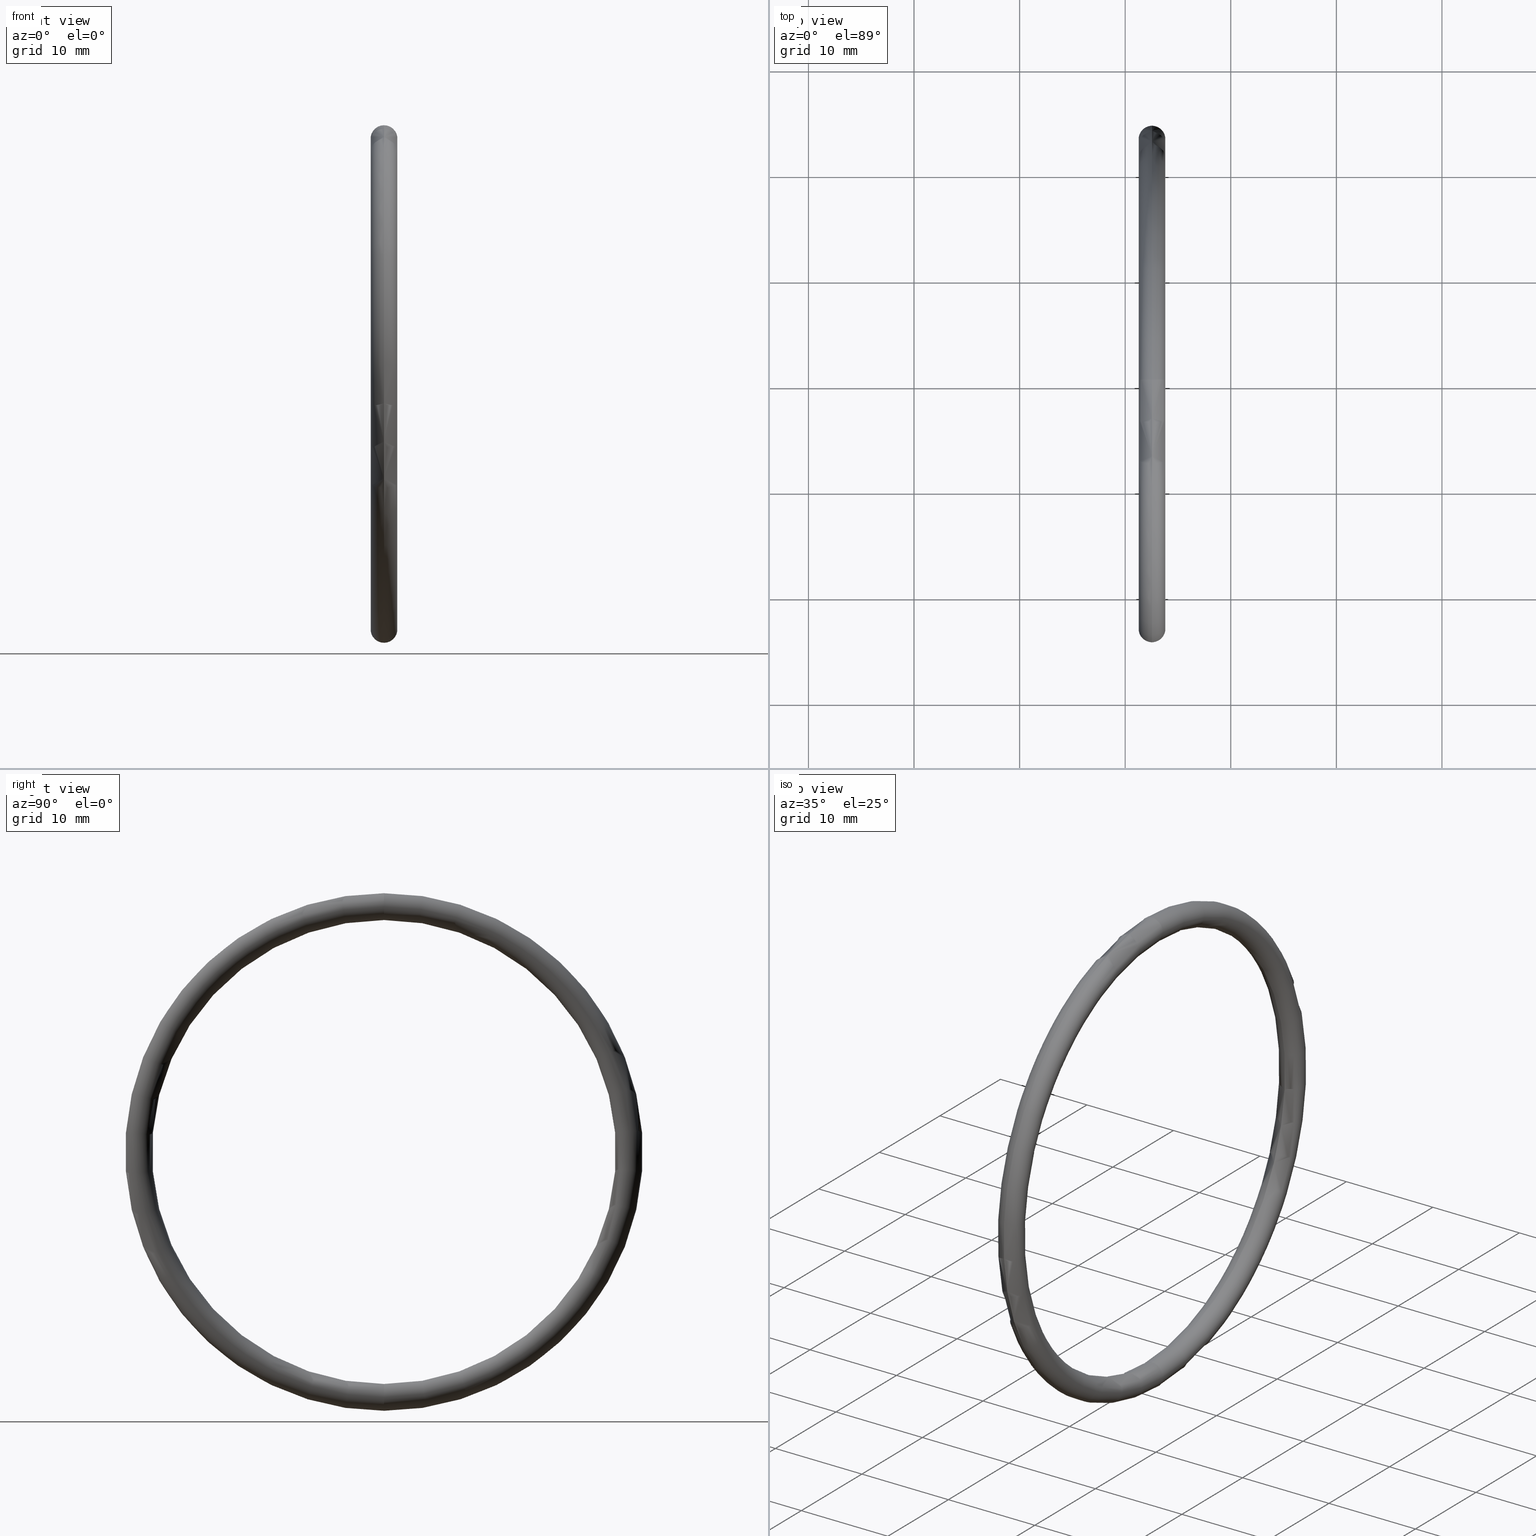
[diagram: canonical four-view strip — front | top / right | iso, engineering-drawing reading convention]
A machine part, canonical four-view strip (front | top / right | iso — engineering-drawing reading convention). The complete STEP part file that produces these views, byte-faithful:
ISO-10303-21;
HEADER;
FILE_DESCRIPTION (( 'STEP AP203' ),
    '1' );
FILE_NAME ('OR-64-SI.STEP',
    '2006-03-03T07:51:45',
    ( 'bay06' ),
    ( '' ),
    'SwSTEP 2.0',
    'SolidWorks 2008',
    '' );
FILE_SCHEMA (( 'CONFIG_CONTROL_DESIGN' ));
ENDSEC;

DATA;
#1 = ORIENTED_EDGE ( 'NONE', *, *, #20, .T. ) ;
#2 = EDGE_CURVE ( 'NONE', #12, #14, #69, .T. ) ;
#3 = EDGE_LOOP ( 'NONE', ( #26, #24, #22, #51 ) ) ;
#4 = ADVANCED_FACE ( 'NONE', ( #71 ), #75, .T. ) ;
#5 = EDGE_LOOP ( 'NONE', ( #13, #7, #18, #21 ) ) ;
#6 = ORIENTED_EDGE ( 'NONE', *, *, #2, .F. ) ;
#7 = ORIENTED_EDGE ( 'NONE', *, *, #10, .T. ) ;
#8 = EDGE_CURVE ( 'NONE', #14, #12, #68, .T. ) ;
#9 = VERTEX_POINT ( 'NONE', #92 ) ;
#10 = EDGE_CURVE ( 'NONE', #14, #9, #95, .T. ) ;
#11 = MANIFOLD_SOLID_BREP ( 'NONE', #47 ) ;
#12 = VERTEX_POINT ( 'NONE', #96 ) ;
#13 = ORIENTED_EDGE ( 'NONE', *, *, #8, .F. ) ;
#14 = VERTEX_POINT ( 'NONE', #90 ) ;
#15 = VERTEX_POINT ( 'NONE', #89 ) ;
#16 = ADVANCED_FACE ( 'NONE', ( #88 ), #67, .T. ) ;
#17 = ADVANCED_FACE ( 'NONE', ( #59 ), #62, .T. ) ;
#18 = ORIENTED_EDGE ( 'NONE', *, *, #19, .T. ) ;
#19 = EDGE_CURVE ( 'NONE', #9, #15, #83, .T. ) ;
#20 = EDGE_CURVE ( 'NONE', #12, #15, #100, .T. ) ;
#21 = ORIENTED_EDGE ( 'NONE', *, *, #20, .F. ) ;
#22 = ORIENTED_EDGE ( 'NONE', *, *, #8, .T. ) ;
#23 = EDGE_CURVE ( 'NONE', #9, #14, #105, .T. ) ;
#24 = ORIENTED_EDGE ( 'NONE', *, *, #23, .T. ) ;
#25 = CALENDAR_DATE ( 2006, 3, 3 ) ;
#26 = ORIENTED_EDGE ( 'NONE', *, *, #19, .F. ) ;
#27 = DATE_AND_TIME ( #25, #144 ) ;
#28 = PERSON_AND_ORGANIZATION ( #129, #128 ) ;
#29 = DATE_TIME_ROLE ( 'creation_date' ) ;
#30 = PRODUCT_DEFINITION_FORMATION_WITH_SPECIFIED_SOURCE ( 'ANY', '', #130, .NOT_KNOWN. ) ;
#31 = CC_DESIGN_DATE_AND_TIME_ASSIGNMENT ( #27, #29, ( #160 ) ) ;
#32 = APPROVAL_ROLE ( '' ) ;
#33 = APPROVAL_PERSON_ORGANIZATION ( #28, #36, #32 ) ;
#34 = COORDINATED_UNIVERSAL_TIME_OFFSET ( 5, 30, .AHEAD. ) ;
#35 = LOCAL_TIME ( 13, 21, 45.00000000000000000, #34 ) ;
#36 = APPROVAL ( #38, 'UNSPECIFIED' ) ;
#37 = CALENDAR_DATE ( 2006, 3, 3 ) ;
#38 = APPROVAL_STATUS ( 'not_yet_approved' ) ;
#39 = EDGE_CURVE ( 'NONE', #15, #12, #104, .T. ) ;
#40 = ORIENTED_EDGE ( 'NONE', *, *, #48, .F. ) ;
#41 = ADVANCED_FACE ( 'NONE', ( #124 ), #118, .T. ) ;
#42 = ORIENTED_EDGE ( 'NONE', *, *, #39, .T. ) ;
#43 = ORIENTED_EDGE ( 'NONE', *, *, #10, .F. ) ;
#44 = EDGE_LOOP ( 'NONE', ( #43, #6, #1, #46 ) ) ;
#45 = ORIENTED_EDGE ( 'NONE', *, *, #2, .T. ) ;
#46 = ORIENTED_EDGE ( 'NONE', *, *, #48, .T. ) ;
#47 = CLOSED_SHELL ( 'NONE', ( #16, #17, #41, #4 ) ) ;
#48 = EDGE_CURVE ( 'NONE', #15, #9, #110, .T. ) ;
#49 = ORIENTED_EDGE ( 'NONE', *, *, #23, .F. ) ;
#50 = EDGE_LOOP ( 'NONE', ( #49, #40, #42, #45 ) ) ;
#51 = ORIENTED_EDGE ( 'NONE', *, *, #39, .F. ) ;
#52 = CC_DESIGN_APPROVAL ( #36, ( #30 ) ) ;
#53 = DATE_AND_TIME ( #37, #35 ) ;
#54 = APPROVAL_DATE_TIME ( #53, #36 ) ;
#55 = DIRECTION ( 'NONE',  ( -0.0000000000000000000, 1.000000000000000000, 1.224646799147353200E-016 ) ) ;
#56 = CARTESIAN_POINT ( 'NONE',  ( 0.1000000000000001200, 1.120551821219828000E-016, -0.9149999999999999200 ) ) ;
#57 = AXIS2_PLACEMENT_3D ( 'NONE', #56, #55, #93 ) ;
#58 = AXIS2_PLACEMENT_3D ( 'NONE', #70, #91, #72 ) ;
#59 = FACE_OUTER_BOUND ( 'NONE', #3, .T. ) ;
#60 = DIRECTION ( 'NONE',  ( 0.0000000000000000000, 0.0000000000000000000, 1.000000000000000000 ) ) ;
#61 = DIRECTION ( 'NONE',  ( -1.000000000000000000, -0.0000000000000000000, -0.0000000000000000000 ) ) ;
#62 = TOROIDAL_SURFACE ( 'NONE', #64, 0.9149999999999999200, 0.05000000000000000300 ) ;
#63 = CARTESIAN_POINT ( 'NONE',  ( 0.1000000000000001200, 0.0000000000000000000, 0.0000000000000000000 ) ) ;
#64 = AXIS2_PLACEMENT_3D ( 'NONE', #63, #86, #85 ) ;
#65 = DIRECTION ( 'NONE',  ( -1.000000000000000000, -0.0000000000000000000, -0.0000000000000000000 ) ) ;
#66 = AXIS2_PLACEMENT_3D ( 'NONE', #87, #61, #60 ) ;
#67 = TOROIDAL_SURFACE ( 'NONE', #66, 0.9149999999999999200, 0.05000000000000000300 ) ;
#68 = CIRCLE ( 'NONE', #57, 0.05000000000000001000 ) ;
#69 = CIRCLE ( 'NONE', #58, 0.05000000000000001000 ) ;
#70 = CARTESIAN_POINT ( 'NONE',  ( 0.1000000000000001200, 1.120551821219828000E-016, -0.9149999999999999200 ) ) ;
#71 = FACE_OUTER_BOUND ( 'NONE', #44, .T. ) ;
#72 = DIRECTION ( 'NONE',  ( 0.0000000000000000000, -1.224646799147351700E-016, 1.000000000000000000 ) ) ;
#73 = DIRECTION ( 'NONE',  ( 0.0000000000000000000, 0.0000000000000000000, 1.000000000000000000 ) ) ;
#74 = AXIS2_PLACEMENT_3D ( 'NONE', #76, #65, #73 ) ;
#75 = TOROIDAL_SURFACE ( 'NONE', #74, 0.9149999999999999200, 0.05000000000000000300 ) ;
#76 = CARTESIAN_POINT ( 'NONE',  ( 0.1000000000000001200, 0.0000000000000000000, 0.0000000000000000000 ) ) ;
#77 = DIRECTION ( 'NONE',  ( 0.0000000000000000000, 0.0000000000000000000, 1.000000000000000000 ) ) ;
#78 = DIRECTION ( 'NONE',  ( -1.000000000000000000, -0.0000000000000000000, -0.0000000000000000000 ) ) ;
#79 = CARTESIAN_POINT ( 'NONE',  ( 0.1000000000000001200, 0.0000000000000000000, 0.0000000000000000000 ) ) ;
#80 = DIRECTION ( 'NONE',  ( 0.0000000000000000000, -1.000000000000000000, 0.0000000000000000000 ) ) ;
#81 = CARTESIAN_POINT ( 'NONE',  ( 0.1000000000000001200, 0.0000000000000000000, 0.9149999999999999200 ) ) ;
#82 = AXIS2_PLACEMENT_3D ( 'NONE', #81, #80, #102 ) ;
#83 = CIRCLE ( 'NONE', #82, 0.05000000000000001000 ) ;
#84 = CARTESIAN_POINT ( 'NONE',  ( 0.1000000000000001200, 0.0000000000000000000, 0.0000000000000000000 ) ) ;
#85 = DIRECTION ( 'NONE',  ( 0.0000000000000000000, 0.0000000000000000000, 1.000000000000000000 ) ) ;
#86 = DIRECTION ( 'NONE',  ( -1.000000000000000000, -0.0000000000000000000, -0.0000000000000000000 ) ) ;
#87 = CARTESIAN_POINT ( 'NONE',  ( 0.1000000000000001200, 0.0000000000000000000, 0.0000000000000000000 ) ) ;
#88 = FACE_OUTER_BOUND ( 'NONE', #5, .T. ) ;
#89 = CARTESIAN_POINT ( 'NONE',  ( 0.1000000000000001200, 0.0000000000000000000, 0.8649999999999998800 ) ) ;
#90 = CARTESIAN_POINT ( 'NONE',  ( 0.1000000000000001200, 1.181784161177195800E-016, -0.9649999999999999700 ) ) ;
#91 = DIRECTION ( 'NONE',  ( -0.0000000000000000000, 1.000000000000000000, 1.224646799147353200E-016 ) ) ;
#92 = CARTESIAN_POINT ( 'NONE',  ( 0.1000000000000001200, 0.0000000000000000000, 0.9649999999999999700 ) ) ;
#93 = DIRECTION ( 'NONE',  ( 0.0000000000000000000, -1.224646799147351700E-016, 1.000000000000000000 ) ) ;
#94 = AXIS2_PLACEMENT_3D ( 'NONE', #79, #78, #77 ) ;
#95 = CIRCLE ( 'NONE', #94, 0.9649999999999999700 ) ;
#96 = CARTESIAN_POINT ( 'NONE',  ( 0.1000000000000001200, 1.059319481262460500E-016, -0.8649999999999998800 ) ) ;
#97 = DIRECTION ( 'NONE',  ( 0.0000000000000000000, 0.0000000000000000000, 1.000000000000000000 ) ) ;
#98 = DIRECTION ( 'NONE',  ( -1.000000000000000000, -0.0000000000000000000, -0.0000000000000000000 ) ) ;
#99 = AXIS2_PLACEMENT_3D ( 'NONE', #84, #98, #97 ) ;
#100 = CIRCLE ( 'NONE', #99, 0.8649999999999998800 ) ;
#101 = PERSON_AND_ORGANIZATION ( #129, #128 ) ;
#102 = DIRECTION ( 'NONE',  ( 0.0000000000000000000, 0.0000000000000000000, -1.000000000000000000 ) ) ;
#103 = PERSON_AND_ORGANIZATION_ROLE ( 'creator' ) ;
#104 = CIRCLE ( 'NONE', #137, 0.8649999999999998800 ) ;
#105 = CIRCLE ( 'NONE', #114, 0.9649999999999999700 ) ;
#106 = DIRECTION ( 'NONE',  ( 0.0000000000000000000, 0.0000000000000000000, 1.000000000000000000 ) ) ;
#107 = DIRECTION ( 'NONE',  ( 0.0000000000000000000, 0.0000000000000000000, -1.000000000000000000 ) ) ;
#108 = DIRECTION ( 'NONE',  ( 0.0000000000000000000, -1.000000000000000000, 0.0000000000000000000 ) ) ;
#109 = AXIS2_PLACEMENT_3D ( 'NONE', #141, #108, #107 ) ;
#110 = CIRCLE ( 'NONE', #109, 0.05000000000000001000 ) ;
#111 = CARTESIAN_POINT ( 'NONE',  ( 0.1000000000000001200, 0.0000000000000000000, 0.0000000000000000000 ) ) ;
#112 = AXIS2_PLACEMENT_3D ( 'NONE', #111, #166, #143 ) ;
#113 = APPLICATION_CONTEXT ( 'configuration controlled 3d designs of mechanical parts and assemblies' ) ;
#114 = AXIS2_PLACEMENT_3D ( 'NONE', #133, #165, #106 ) ;
#115 =( CONVERSION_BASED_UNIT ( 'INCH', #116 ) LENGTH_UNIT ( ) NAMED_UNIT ( #120 ) );
#116 = LENGTH_MEASURE_WITH_UNIT ( LENGTH_MEASURE( 0.02539999999999999900 ), #121 );
#117 = CARTESIAN_POINT ( 'NONE',  ( 0.1000000000000001200, 0.0000000000000000000, 0.0000000000000000000 ) ) ;
#118 = TOROIDAL_SURFACE ( 'NONE', #112, 0.9149999999999999200, 0.05000000000000000300 ) ;
#119 = UNCERTAINTY_MEASURE_WITH_UNIT (LENGTH_MEASURE( 1.000000000000000100E-005 ), #115, 'distance_accuracy_value', 'NONE');
#120 = DIMENSIONAL_EXPONENTS ( 1.000000000000000000, 0.0000000000000000000, 0.0000000000000000000, 0.0000000000000000000, 0.0000000000000000000, 0.0000000000000000000, 0.0000000000000000000 ) ;
#121 =( LENGTH_UNIT ( ) NAMED_UNIT ( * ) SI_UNIT ( $, .METRE. ) );
#122 =( NAMED_UNIT ( * ) SI_UNIT ( $, .STERADIAN. ) SOLID_ANGLE_UNIT ( ) );
#123 =( NAMED_UNIT ( * ) PLANE_ANGLE_UNIT ( ) SI_UNIT ( $, .RADIAN. ) );
#124 = FACE_OUTER_BOUND ( 'NONE', #50, .T. ) ;
#125 = DIRECTION ( 'NONE',  ( 0.0000000000000000000, 0.0000000000000000000, 1.000000000000000000 ) ) ;
#126 = PERSON_AND_ORGANIZATION_ROLE ( 'design_owner' ) ;
#127 = PERSON_AND_ORGANIZATION ( #129, #128 ) ;
#128 = ORGANIZATION ( 'UNSPECIFIED', 'UNSPECIFIED', '' ) ;
#129 = PERSON ( 'UNSPECIFIED', 'UNSPECIFIED', 'UNSPECIFIED', ('UNSPECIFIED'), ('UNSPECIFIED'), ('UNSPECIFIED') ) ;
#130 = PRODUCT ( 'OR-64-SI', 'OR-64-SI', '', ( #131 ) ) ;
#131 = MECHANICAL_CONTEXT ( 'NONE', #113, 'mechanical' ) ;
#132 = APPLICATION_PROTOCOL_DEFINITION ( 'international standard', 'config_control_design', 1994, #113 ) ;
#133 = CARTESIAN_POINT ( 'NONE',  ( 0.1000000000000001200, 0.0000000000000000000, 0.0000000000000000000 ) ) ;
#134 = DIRECTION ( 'NONE',  ( 1.000000000000000000, 0.0000000000000000000, 0.0000000000000000000 ) ) ;
#135 = DIRECTION ( 'NONE',  ( 0.0000000000000000000, 0.0000000000000000000, 1.000000000000000000 ) ) ;
#136 = AXIS2_PLACEMENT_3D ( 'NONE', #142, #135, #134 ) ;
#137 = AXIS2_PLACEMENT_3D ( 'NONE', #117, #140, #125 ) ;
#138 = ADVANCED_BREP_SHAPE_REPRESENTATION ( 'OR-64-SI', ( #11, #136 ), #139 ) ;
#139 =( GEOMETRIC_REPRESENTATION_CONTEXT ( 3 ) GLOBAL_UNCERTAINTY_ASSIGNED_CONTEXT ( ( #119 ) ) GLOBAL_UNIT_ASSIGNED_CONTEXT ( ( #115, #123, #122 ) ) REPRESENTATION_CONTEXT ( 'NONE', 'WORKASPACE' ) );
#140 = DIRECTION ( 'NONE',  ( -1.000000000000000000, -0.0000000000000000000, -0.0000000000000000000 ) ) ;
#141 = CARTESIAN_POINT ( 'NONE',  ( 0.1000000000000001200, 0.0000000000000000000, 0.9149999999999999200 ) ) ;
#142 = CARTESIAN_POINT ( 'NONE',  ( 0.0000000000000000000, 0.0000000000000000000, 0.0000000000000000000 ) ) ;
#143 = DIRECTION ( 'NONE',  ( 0.0000000000000000000, 0.0000000000000000000, 1.000000000000000000 ) ) ;
#144 = LOCAL_TIME ( 13, 21, 45.00000000000000000, #145 ) ;
#145 = COORDINATED_UNIVERSAL_TIME_OFFSET ( 5, 30, .AHEAD. ) ;
#146 = CC_DESIGN_PERSON_AND_ORGANIZATION_ASSIGNMENT ( #148, #147, ( #160 ) ) ;
#147 = PERSON_AND_ORGANIZATION_ROLE ( 'creator' ) ;
#148 = PERSON_AND_ORGANIZATION ( #129, #128 ) ;
#149 = CC_DESIGN_APPROVAL ( #157, ( #160 ) ) ;
#150 = APPROVAL_DATE_TIME ( #151, #157 ) ;
#151 = DATE_AND_TIME ( #152, #153 ) ;
#152 = CALENDAR_DATE ( 2006, 3, 3 ) ;
#153 = LOCAL_TIME ( 13, 21, 45.00000000000000000, #154 ) ;
#154 = COORDINATED_UNIVERSAL_TIME_OFFSET ( 5, 30, .AHEAD. ) ;
#155 = APPROVAL_PERSON_ORGANIZATION ( #159, #157, #156 ) ;
#156 = APPROVAL_ROLE ( '' ) ;
#157 = APPROVAL ( #158, 'UNSPECIFIED' ) ;
#158 = APPROVAL_STATUS ( 'not_yet_approved' ) ;
#159 = PERSON_AND_ORGANIZATION ( #129, #128 ) ;
#160 = PRODUCT_DEFINITION ( 'UNKNOWN', '', #30, #161 ) ;
#161 = DESIGN_CONTEXT ( 'detailed design', #163, 'design' ) ;
#162 = APPLICATION_PROTOCOL_DEFINITION ( 'international standard', 'config_control_design', 1994, #163 ) ;
#163 = APPLICATION_CONTEXT ( 'configuration controlled 3d designs of mechanical parts and assemblies' ) ;
#164 = CC_DESIGN_PERSON_AND_ORGANIZATION_ASSIGNMENT ( #127, #126, ( #130 ) ) ;
#165 = DIRECTION ( 'NONE',  ( -1.000000000000000000, -0.0000000000000000000, -0.0000000000000000000 ) ) ;
#166 = DIRECTION ( 'NONE',  ( -1.000000000000000000, -0.0000000000000000000, -0.0000000000000000000 ) ) ;
#167 = SECURITY_CLASSIFICATION_LEVEL ( 'unclassified' ) ;
#168 = DATE_AND_TIME ( #189, #192 ) ;
#169 = PERSON_AND_ORGANIZATION ( #129, #128 ) ;
#170 = CC_DESIGN_PERSON_AND_ORGANIZATION_ASSIGNMENT ( #169, #195, ( #179 ) ) ;
#171 = CALENDAR_DATE ( 2006, 3, 3 ) ;
#172 = LOCAL_TIME ( 13, 21, 45.00000000000000000, #173 ) ;
#173 = COORDINATED_UNIVERSAL_TIME_OFFSET ( 5, 30, .AHEAD. ) ;
#174 = PERSON_AND_ORGANIZATION_ROLE ( 'design_supplier' ) ;
#175 = CC_DESIGN_SECURITY_CLASSIFICATION ( #179, ( #30 ) ) ;
#176 = CC_DESIGN_APPROVAL ( #186, ( #179 ) ) ;
#177 = APPROVAL_DATE_TIME ( #178, #186 ) ;
#178 = DATE_AND_TIME ( #171, #172 ) ;
#179 = SECURITY_CLASSIFICATION ( '', '', #167 ) ;
#180 = CC_DESIGN_PERSON_AND_ORGANIZATION_ASSIGNMENT ( #191, #174, ( #30 ) ) ;
#181 = PERSON_AND_ORGANIZATION ( #129, #128 ) ;
#182 = PRODUCT_DEFINITION_SHAPE ( 'NONE', 'NONE',  #160 ) ;
#183 = PRODUCT_RELATED_PRODUCT_CATEGORY ( 'detail', '', ( #130 ) ) ;
#184 = APPROVAL_PERSON_ORGANIZATION ( #181, #186, #185 ) ;
#185 = APPROVAL_ROLE ( '' ) ;
#186 = APPROVAL ( #187, 'UNSPECIFIED' ) ;
#187 = APPROVAL_STATUS ( 'not_yet_approved' ) ;
#188 = CC_DESIGN_DATE_AND_TIME_ASSIGNMENT ( #168, #194, ( #179 ) ) ;
#189 = CALENDAR_DATE ( 2006, 3, 3 ) ;
#190 = SHAPE_DEFINITION_REPRESENTATION ( #182, #138 ) ;
#191 = PERSON_AND_ORGANIZATION ( #129, #128 ) ;
#192 = LOCAL_TIME ( 13, 21, 45.00000000000000000, #193 ) ;
#193 = COORDINATED_UNIVERSAL_TIME_OFFSET ( 5, 30, .AHEAD. ) ;
#194 = DATE_TIME_ROLE ( 'classification_date' ) ;
#195 = PERSON_AND_ORGANIZATION_ROLE ( 'classification_officer' ) ;
#196 = CC_DESIGN_PERSON_AND_ORGANIZATION_ASSIGNMENT ( #101, #103, ( #30 ) ) ;
ENDSEC;
END-ISO-10303-21;
